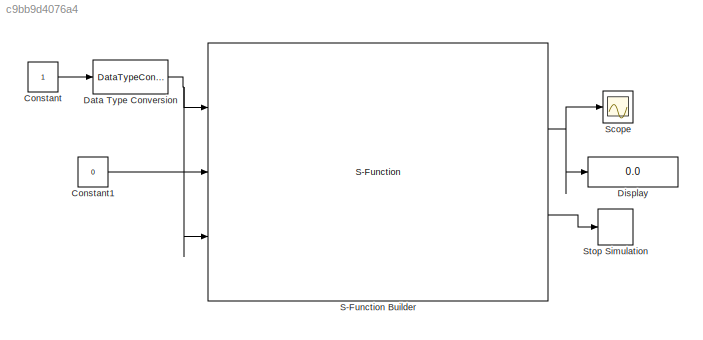
MODEL slx_c9bb9d4076a4
KIND model
BLOCK [Constant] Constant
BLOCK [Constant] Constant1
  OutDataTypeStr = uint8
  Value = 0
BLOCK [DataTypeConversion] Data Type Conversion
  OutDataTypeStr = boolean
  OutMax = [1]
  OutMin = [0]
  RndMeth = Floor
  SaturateOnIntegerOverflow = off
BLOCK [Display] Display
  Decimation = 1
  Format = hex (Stored Integer)
  Lockdown = off
  Ports = [1]
BLOCK [S-Function] S-Function Builder
  CopyFcn = set_param(gcbh,'LinkStatus','none')
  EnableBusSupport = off
  FunctionName = BBB_Driver_I2C_Read_Write
  InitFcn = try, set_param(gcb,'FunctionName','BBB_Driver_I2C_Read_Write'), end
  OpenFcn = sfunctionwizard(gcbh)
  Parameters = uint8(2),uint8(1),uint8(104),uint8(32),uint8(6)
  Ports = [3, 2]
  PreSaveFcn = try, set_param(gcb,'FunctionName','BBB_Driver_I2C_Read_Write'), end
  SFunctionModules = BBB_Driver_I2C_Read_Write_wrapper
BLOCK [Scope] Scope
  DataFormat = StructureWithTime
  Floating = off
  NumInputPorts = 1
  Ports = [1]
  SampleTime = 0
  ShowLegends = off
  YMax = 102
  YMin = 102
BLOCK [Stop] Stop Simulation
LINE Constant1:1 -> S-Function Builder:2
LINE Constant:1 -> Data Type Conversion:1
NET Data Type Conversion:1 -> S-Function Builder:1, S-Function Builder:3
NET S-Function Builder:1 -> Display:1, Scope:1
LINE S-Function Builder:2 -> Stop Simulation:1
note: NET lines group one-source signal fan-out (src -> all destinations, sorted); 1:1 wires keep LINE
